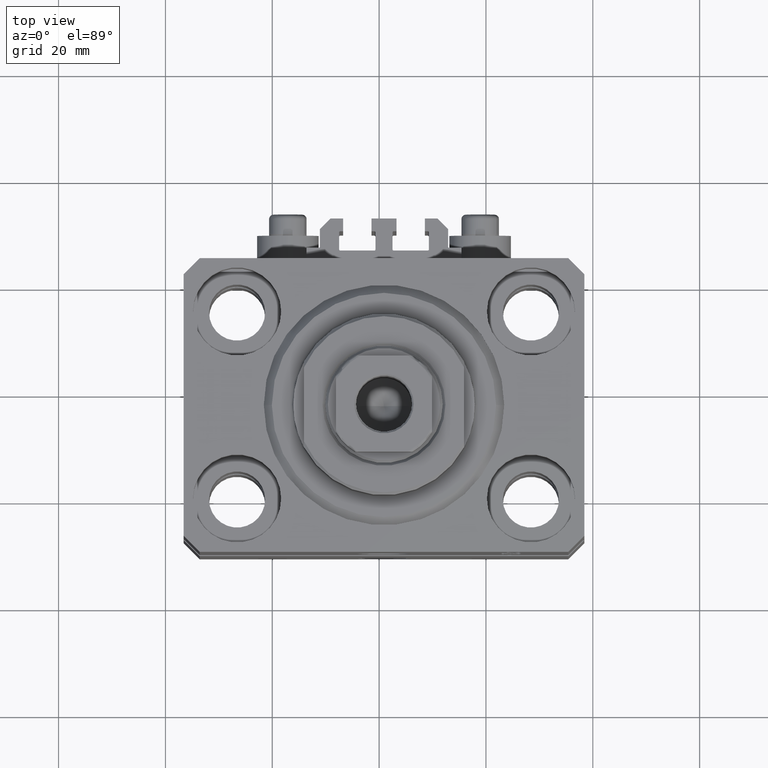
[diagram: clean part render]
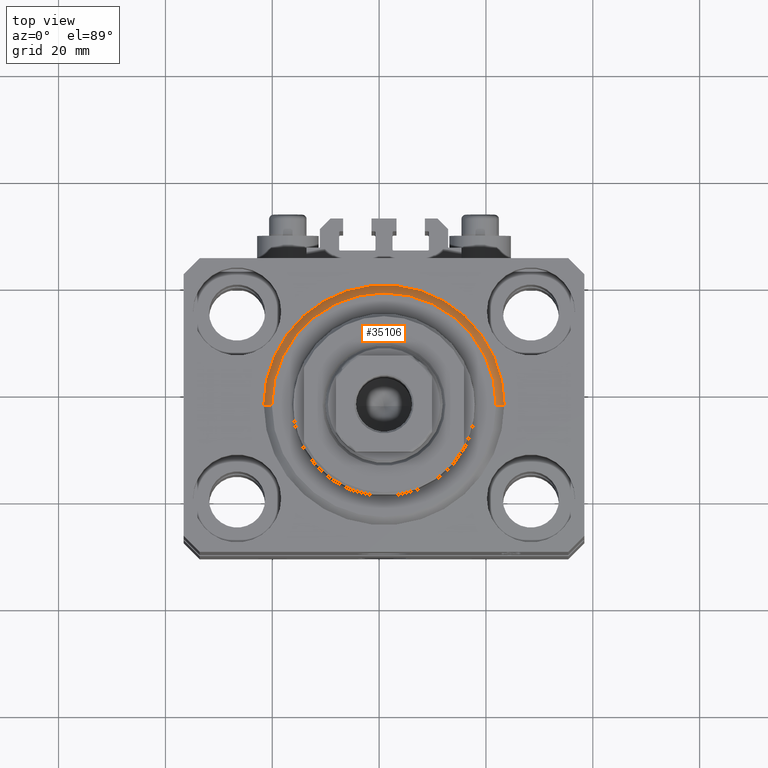
[diagram: same view with one face highlighted and labeled with its STEP entity id]
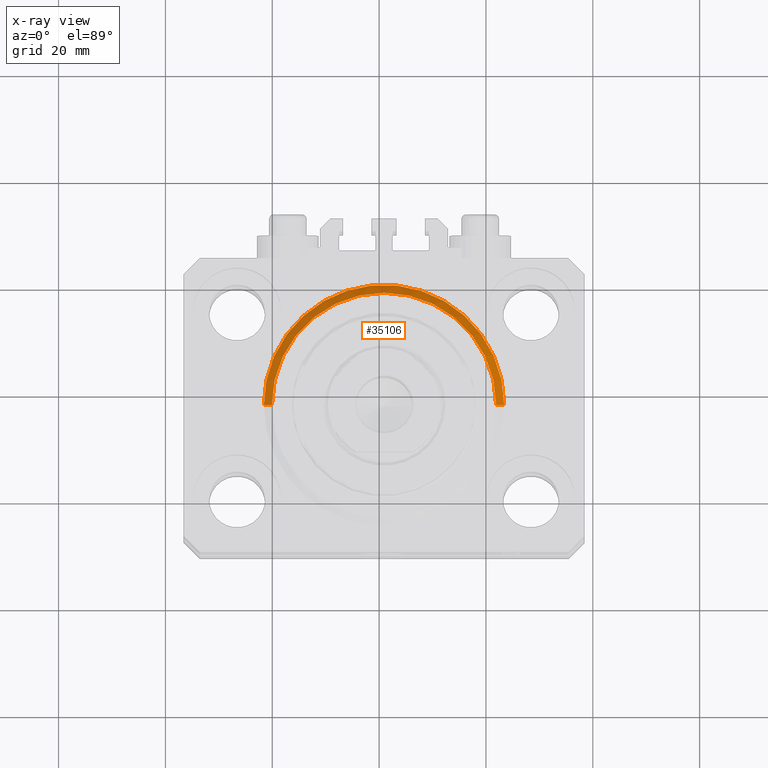
[diagram: x-ray of the same camera — body ghosted, the highlighted face saturated]
A machine part, top view. The second image highlights one B-rep face of the part: STEP entity #35106.
The next image is the same camera in x-ray: the body ghosted, the highlighted face saturated — about 0% of this face is hidden behind the body in this view.
In plain terms, the highlighted conical surface has half-angle 45 deg.
Its self-contained STEP definition (entity closure, byte-faithful):
#139 = CONICAL_SURFACE ( 'NONE', #44724, 22.50000000000000355, 0.7853981633974517207 ) ;
#372 = AXIS2_PLACEMENT_3D ( 'NONE', #6005, #23779, #23310 ) ;
#854 = CARTESIAN_POINT ( 'NONE',  ( -22.50000000000000355, 2.755455298081545172E-15, 1.500000000000001332 ) ) ;
#909 = ORIENTED_EDGE ( 'NONE', *, *, #5882, .F. ) ;
#1443 = CARTESIAN_POINT ( 'NONE',  ( 0.000000000000000000, 0.000000000000000000, 1.500000000000001332 ) ) ;
#1926 = DIRECTION ( 'NONE',  ( 0.7071067811865500152, 0.000000000000000000, 0.7071067811865451302 ) ) ;
#2608 = CARTESIAN_POINT ( 'NONE',  ( -20.99999999999998934, 2.663606788145492628E-15, 0.000000000000000000 ) ) ;
#3024 = CARTESIAN_POINT ( 'NONE',  ( 20.99999999999998934, 0.000000000000000000, 0.000000000000000000 ) ) ;
#4808 = ORIENTED_EDGE ( 'NONE', *, *, #37137, .F. ) ;
#5882 = EDGE_CURVE ( 'NONE', #38909, #11147, #38928, .T. ) ;
#5886 = CARTESIAN_POINT ( 'NONE',  ( -22.50000000000000355, 0.000000000000000000, 1.500000000000001332 ) ) ;
#6005 = CARTESIAN_POINT ( 'NONE',  ( 0.000000000000000000, 0.000000000000000000, 1.500000000000001332 ) ) ;
#7382 = ORIENTED_EDGE ( 'NONE', *, *, #8134, .T. ) ;
#7789 = ORIENTED_EDGE ( 'NONE', *, *, #31802, .F. ) ;
#8134 = EDGE_CURVE ( 'NONE', #35222, #11147, #15760, .T. ) ;
#8768 = VECTOR ( 'NONE', #44181, 1000.000000000000114 ) ;
#11147 = VERTEX_POINT ( 'NONE', #5886 ) ;
#12110 = FACE_OUTER_BOUND ( 'NONE', #18606, .T. ) ;
#13562 = DIRECTION ( 'NONE',  ( -0.000000000000000000, -0.000000000000000000, -1.000000000000000000 ) ) ;
#13788 = VERTEX_POINT ( 'NONE', #3024 ) ;
#15760 = LINE ( 'NONE', #854, #8768 ) ;
#17564 = DIRECTION ( 'NONE',  ( 1.000000000000000000, 0.000000000000000000, 0.000000000000000000 ) ) ;
#18146 = CARTESIAN_POINT ( 'NONE',  ( 22.50000000000000355, 2.755455298081545172E-15, 1.500000000000001332 ) ) ;
#18606 = EDGE_LOOP ( 'NONE', ( #4808, #7382, #909, #7789 ) ) ;
#22915 = AXIS2_PLACEMENT_3D ( 'NONE', #43130, #13562, #17564 ) ;
#23310 = DIRECTION ( 'NONE',  ( 1.000000000000000000, 0.000000000000000000, 0.000000000000000000 ) ) ;
#23779 = DIRECTION ( 'NONE',  ( -0.000000000000000000, -0.000000000000000000, 1.000000000000000000 ) ) ;
#26784 = DIRECTION ( 'NONE',  ( -0.000000000000000000, -0.000000000000000000, 1.000000000000000000 ) ) ;
#30580 = LINE ( 'NONE', #34127, #44756 ) ;
#30810 = DIRECTION ( 'NONE',  ( 1.000000000000000000, 0.000000000000000000, 0.000000000000000000 ) ) ;
#31802 = EDGE_CURVE ( 'NONE', #13788, #38909, #30580, .T. ) ;
#34127 = CARTESIAN_POINT ( 'NONE',  ( 22.50000000000000355, 0.000000000000000000, 1.500000000000001332 ) ) ;
#35106 = ADVANCED_FACE ( 'NONE', ( #12110 ), #139, .T. ) ;
#35222 = VERTEX_POINT ( 'NONE', #2608 ) ;
#37137 = EDGE_CURVE ( 'NONE', #35222, #13788, #43293, .T. ) ;
#38909 = VERTEX_POINT ( 'NONE', #18146 ) ;
#38928 = CIRCLE ( 'NONE', #372, 22.50000000000000355 ) ;
#43130 = CARTESIAN_POINT ( 'NONE',  ( 0.000000000000000000, 0.000000000000000000, 0.000000000000000000 ) ) ;
#43293 = CIRCLE ( 'NONE', #22915, 20.99999999999998934 ) ;
#44181 = DIRECTION ( 'NONE',  ( -0.7071067811865500152, 8.659560562354963673E-17, 0.7071067811865451302 ) ) ;
#44724 = AXIS2_PLACEMENT_3D ( 'NONE', #1443, #26784, #30810 ) ;
#44756 = VECTOR ( 'NONE', #1926, 1000.000000000000114 ) ;